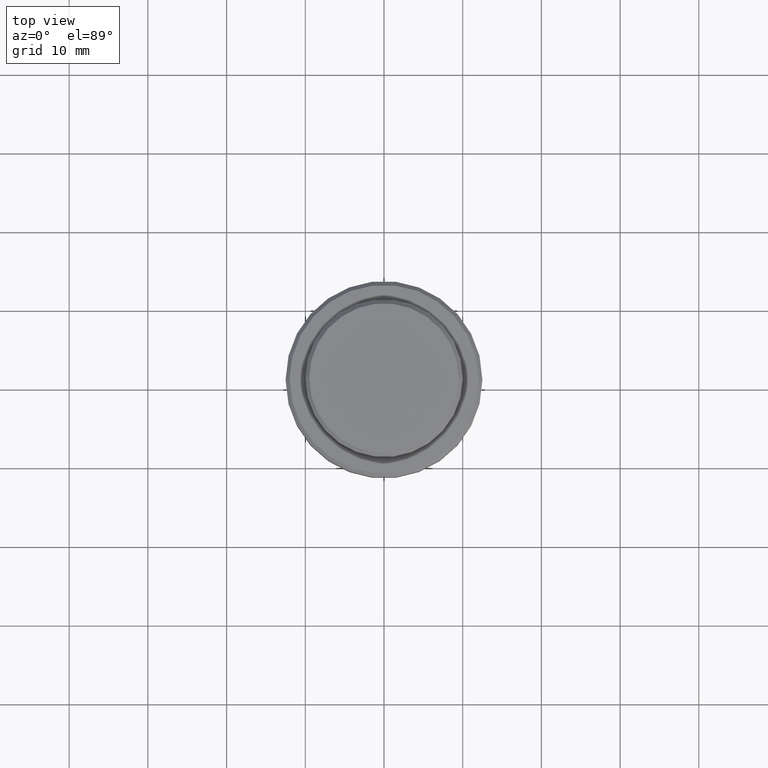
[diagram: clean part render]
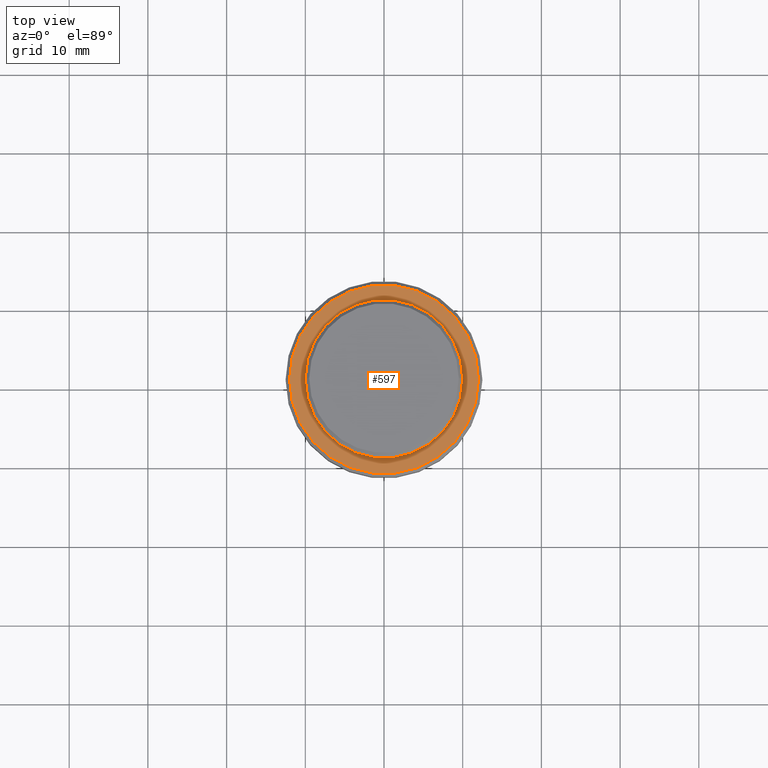
[diagram: same view with one face highlighted and labeled with its STEP entity id]
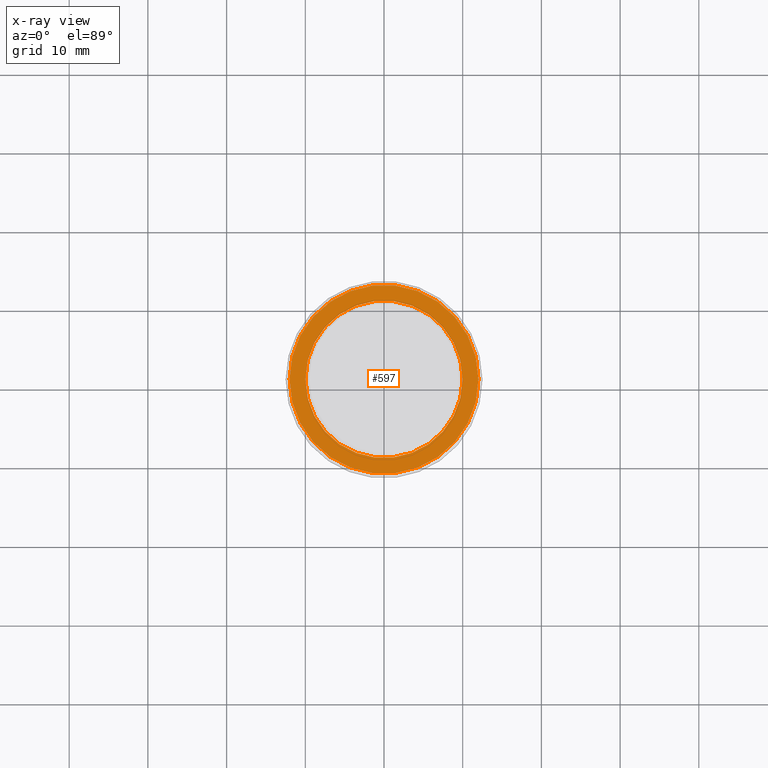
[diagram: x-ray of the same camera — body ghosted, the highlighted face saturated]
A machine part, top view. The second image highlights one B-rep face of the part: STEP entity #597.
The next image is the same camera in x-ray: the body ghosted, the highlighted face saturated — about 0% of this face is hidden behind the body in this view.
In plain terms, the highlighted planar face has unit normal (0, -0, 1).
Its self-contained STEP definition (entity closure, byte-faithful):
#53 = CIRCLE ( 'NONE', #374, 9.999999999999994671 ) ;
#81 = EDGE_LOOP ( 'NONE', ( #800, #387 ) ) ;
#147 = VERTEX_POINT ( 'NONE', #310 ) ;
#169 = EDGE_CURVE ( 'NONE', #1157, #734, #1096, .T. ) ;
#221 = CIRCLE ( 'NONE', #1021, 9.999999999999994671 ) ;
#259 = EDGE_CURVE ( 'NONE', #147, #1127, #53, .T. ) ;
#310 = CARTESIAN_POINT ( 'NONE',  ( -9.999999999999994671, 1.224646799147352665E-15, -9.000000000000001776 ) ) ;
#324 = PLANE ( 'NONE',  #797 ) ;
#332 = AXIS2_PLACEMENT_3D ( 'NONE', #761, #1176, #936 ) ;
#334 = DIRECTION ( 'NONE',  ( 0.000000000000000000, -0.000000000000000000, 1.000000000000000000 ) ) ;
#374 = AXIS2_PLACEMENT_3D ( 'NONE', #1118, #592, #914 ) ;
#387 = ORIENTED_EDGE ( 'NONE', *, *, #259, .T. ) ;
#423 = CARTESIAN_POINT ( 'NONE',  ( 0.000000000000000000, 0.000000000000000000, -9.000000000000001776 ) ) ;
#439 = DIRECTION ( 'NONE',  ( 1.000000000000000000, 0.000000000000000000, 0.000000000000000000 ) ) ;
#482 = DIRECTION ( 'NONE',  ( 0.000000000000000000, 0.000000000000000000, -1.000000000000000000 ) ) ;
#551 = ORIENTED_EDGE ( 'NONE', *, *, #1004, .T. ) ;
#592 = DIRECTION ( 'NONE',  ( 0.000000000000000000, 0.000000000000000000, -1.000000000000000000 ) ) ;
#597 = ADVANCED_FACE ( 'NONE', ( #986, #889 ), #324, .T. ) ;
#603 = CARTESIAN_POINT ( 'NONE',  ( 0.000000000000000000, 0.000000000000000000, -9.000000000000001776 ) ) ;
#734 = VERTEX_POINT ( 'NONE', #1024 ) ;
#759 = EDGE_CURVE ( 'NONE', #1127, #147, #221, .T. ) ;
#761 = CARTESIAN_POINT ( 'NONE',  ( 0.000000000000000000, 0.000000000000000000, -9.000000000000001776 ) ) ;
#778 = DIRECTION ( 'NONE',  ( 1.000000000000000000, 0.000000000000000000, 0.000000000000000000 ) ) ;
#781 = CIRCLE ( 'NONE', #332, 11.99999999999999645 ) ;
#797 = AXIS2_PLACEMENT_3D ( 'NONE', #1202, #334, #778 ) ;
#800 = ORIENTED_EDGE ( 'NONE', *, *, #759, .T. ) ;
#887 = CARTESIAN_POINT ( 'NONE',  ( 11.99999999999999645, 1.500192328955507537E-15, -9.000000000000001776 ) ) ;
#889 = FACE_BOUND ( 'NONE', #81, .T. ) ;
#914 = DIRECTION ( 'NONE',  ( 1.000000000000000000, 0.000000000000000000, 0.000000000000000000 ) ) ;
#936 = DIRECTION ( 'NONE',  ( 1.000000000000000000, 0.000000000000000000, 0.000000000000000000 ) ) ;
#981 = ORIENTED_EDGE ( 'NONE', *, *, #169, .T. ) ;
#985 = CARTESIAN_POINT ( 'NONE',  ( 9.999999999999994671, 0.000000000000000000, -9.000000000000001776 ) ) ;
#986 = FACE_OUTER_BOUND ( 'NONE', #1238, .T. ) ;
#1004 = EDGE_CURVE ( 'NONE', #734, #1157, #781, .T. ) ;
#1015 = AXIS2_PLACEMENT_3D ( 'NONE', #423, #1072, #439 ) ;
#1021 = AXIS2_PLACEMENT_3D ( 'NONE', #603, #482, #1030 ) ;
#1024 = CARTESIAN_POINT ( 'NONE',  ( -11.99999999999999645, 0.000000000000000000, -9.000000000000001776 ) ) ;
#1030 = DIRECTION ( 'NONE',  ( 1.000000000000000000, 0.000000000000000000, 0.000000000000000000 ) ) ;
#1072 = DIRECTION ( 'NONE',  ( -0.000000000000000000, -0.000000000000000000, 1.000000000000000000 ) ) ;
#1096 = CIRCLE ( 'NONE', #1015, 11.99999999999999645 ) ;
#1118 = CARTESIAN_POINT ( 'NONE',  ( 0.000000000000000000, 0.000000000000000000, -9.000000000000001776 ) ) ;
#1127 = VERTEX_POINT ( 'NONE', #985 ) ;
#1157 = VERTEX_POINT ( 'NONE', #887 ) ;
#1176 = DIRECTION ( 'NONE',  ( -0.000000000000000000, -0.000000000000000000, 1.000000000000000000 ) ) ;
#1202 = CARTESIAN_POINT ( 'NONE',  ( 0.000000000000000000, 9.499999999999994671, -9.000000000000001776 ) ) ;
#1238 = EDGE_LOOP ( 'NONE', ( #551, #981 ) ) ;